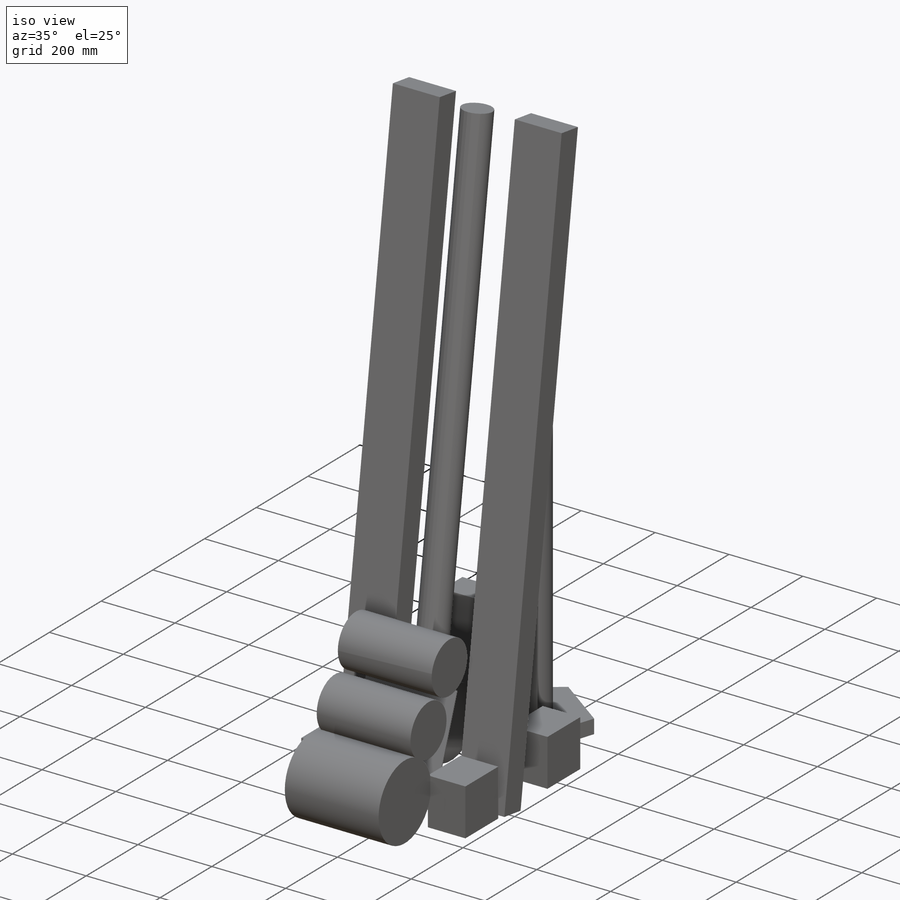
[diagram: iso view]
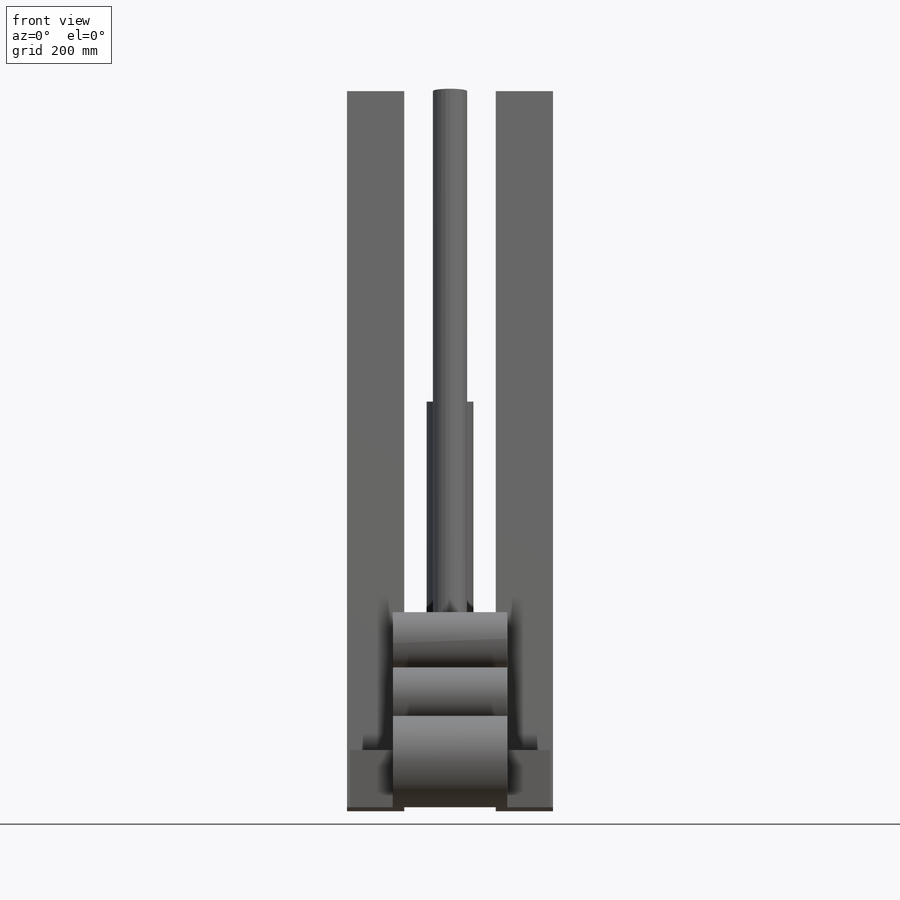
[diagram: front view]
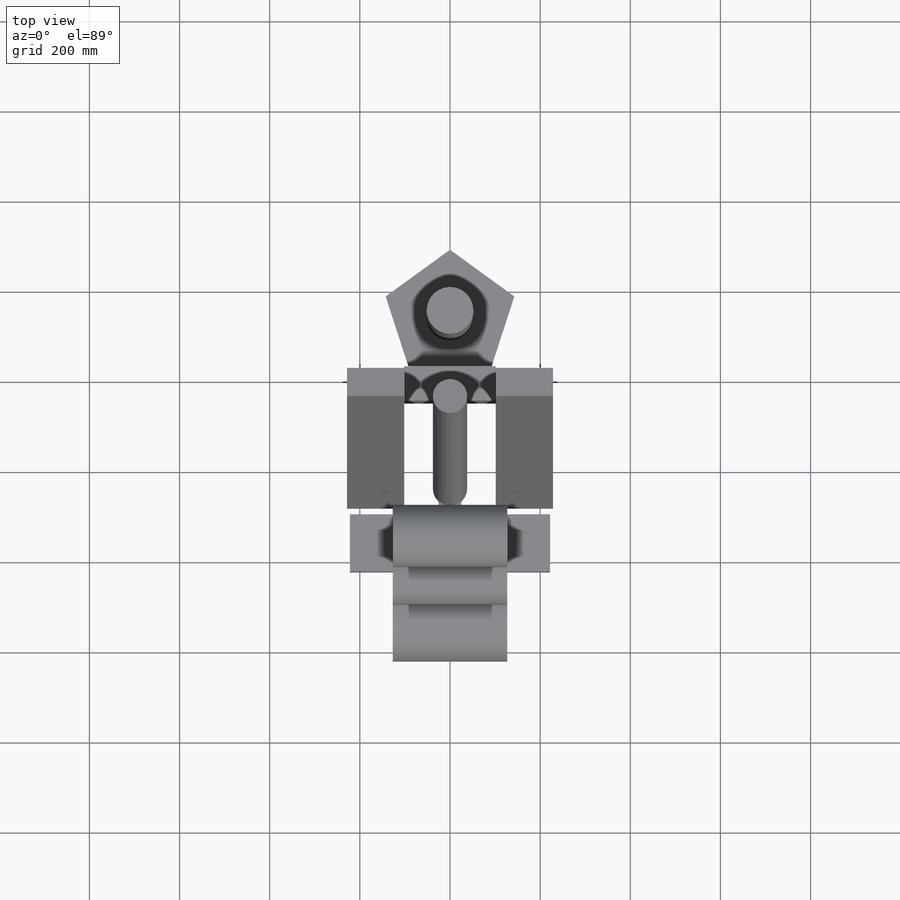
[diagram: top view]
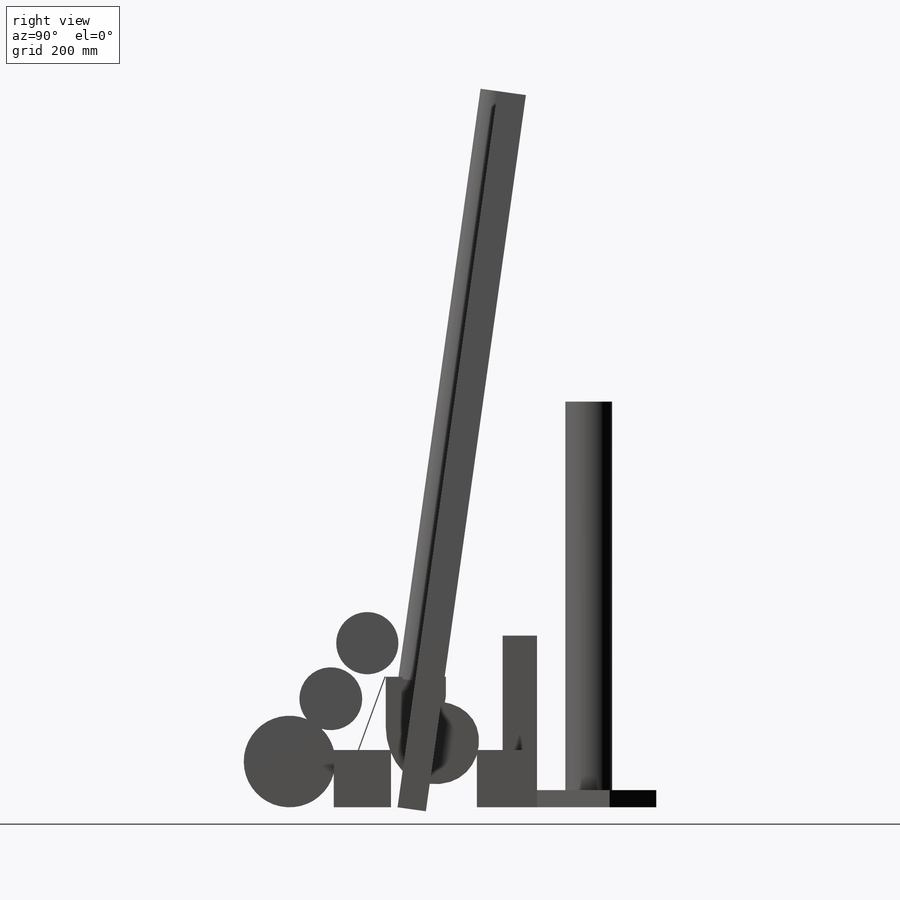
[diagram: right view]
SOLIDWORKS PART (.sldprt)
format: sldprt  version: not decoded by parser v0  size: 345,600 bytes
history: native  units: mm
features: sketch x10, extrude x8, material x1, plane x1, revolve x1 (+16 scaffold rows collapsed; 3 parser-record rows omitted)
feature tree (40):
  scaffold x16  (default folders/planes/origin — collapsed)
  material  "Material <not specified>"
  sketch  "Bounding Box"  dims[D1=457.2mm]
  sketch  "Sketch1"  dims[D1=444.5mm D2=444.5mm D3=101.6mm D4=127.0mm]
  extrude  "Drivetrain"  Depth=127mm
  parser-record x3  (decoder bookkeeping rows leaked as tree rows — omitted from the tree; the rows remain in map.json)
  sketch  "Sketch3"  dims[D1=271.018mm]
  extrude  "Boss-Extrude2"  Depth=38.1mm
  sketch  "Sketch4"  dims[D1=103.632mm]
  extrude  "Boss-Extrude3"  Depth=861.822mm
  sketch  "Sketch5"  dims[D3=101.6mm D1=1270.0mm D2=304.8mm D4=50.8mm D5=133.35mm D6=~110.261914mm D7=~43.281512mm]
  extrude  "Boss-Extrude4"  Depth=50.8mm
  plane  "Plane1"
  sketch  "Sketch7"  dims[D1=38.1mm]
  revolve  "Revolve1"  Angle=360deg
  sketch  "Sketch8"  dims[c1.D1=43.18mm c1.D2=~224.704209mm c2.D2=70.0deg c2.D3=2.54mm]
  extrude  "Boss-Extrude5"  Depth=241.3mm
  sketch  "Sketch12"  dims[D2=203.2mm D1=101.6mm]
  extrude  "Boss-Extrude8"  Depth=254mm
  sketch  "Sketch9"  dims[D1=127.0mm]
  extrude  "Lift"  Depth=63.5mm
  sketch  "Sketch10"  dims[D1=203.2mm D2=76.2mm]
  extrude  "Goal Lift"  Depth=381mm
decode coverage: 19 of 19 modeling features carry decoded parameters
note: ~ marks probable driven/reference dimensions
note: suppression state not decoded; provenance and decode notes live in map.json
